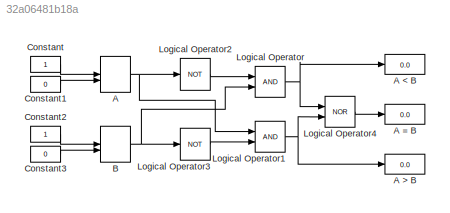
MODEL slx_32a06481b18a
KIND model
CONFIG AbsTol = auto
CONFIG EnableMultiTasking = off
CONFIG FixedStep = auto
CONFIG MaxStep = auto
CONFIG MinStep = auto
CONFIG RelTol = 1e-3
CONFIG SampleTimeConstraint = Unconstrained
CONFIG Solver = VariableStepAuto
CONFIG SolverName = VariableStepAuto
CONFIG StartTime = 0.0
CONFIG StopTime = inf
BLOCK [ManualSwitch] A
  CurrentSetting = 0
BLOCK [Display] A < B
  Decimation = 1
  Ports = [1]
BLOCK [Display] A = B
  Decimation = 1
  Ports = [1]
BLOCK [Display] A > B
  Decimation = 1
  Ports = [1]
BLOCK [ManualSwitch] B
  CurrentSetting = 0
BLOCK [Constant] Constant
  OutDataTypeStr = boolean
BLOCK [Constant] Constant1
  OutDataTypeStr = boolean
  Value = 0
BLOCK [Constant] Constant2
  OutDataTypeStr = boolean
BLOCK [Constant] Constant3
  OutDataTypeStr = boolean
  Value = 0
BLOCK [Logic] Logical Operator
  AllPortsSameDT = off
  OutDataTypeStr = boolean
  Ports = [2, 1]
BLOCK [Logic] Logical Operator1
  AllPortsSameDT = off
  OutDataTypeStr = boolean
  Ports = [2, 1]
BLOCK [Logic] Logical Operator2
  AllPortsSameDT = off
  Operator = NOT
  OutDataTypeStr = boolean
  Ports = [1, 1]
BLOCK [Logic] Logical Operator3
  AllPortsSameDT = off
  Operator = NOT
  OutDataTypeStr = boolean
  Ports = [1, 1]
BLOCK [Logic] Logical Operator4
  AllPortsSameDT = off
  Operator = NOR
  OutDataTypeStr = boolean
  Ports = [2, 1]
NET A:1 -> Logical Operator1:1, Logical Operator2:1
NET B:1 -> Logical Operator3:1, Logical Operator:2
LINE Constant1:1 -> A:2
LINE Constant2:1 -> B:1
LINE Constant3:1 -> B:2
LINE Constant:1 -> A:1
NET Logical Operator1:1 -> A > B:1, Logical Operator4:2
LINE Logical Operator2:1 -> Logical Operator:1
LINE Logical Operator3:1 -> Logical Operator1:2
LINE Logical Operator4:1 -> A = B:1
NET Logical Operator:1 -> A < B:1, Logical Operator4:1
note: NET lines group one-source signal fan-out (src -> all destinations, sorted); 1:1 wires keep LINE
